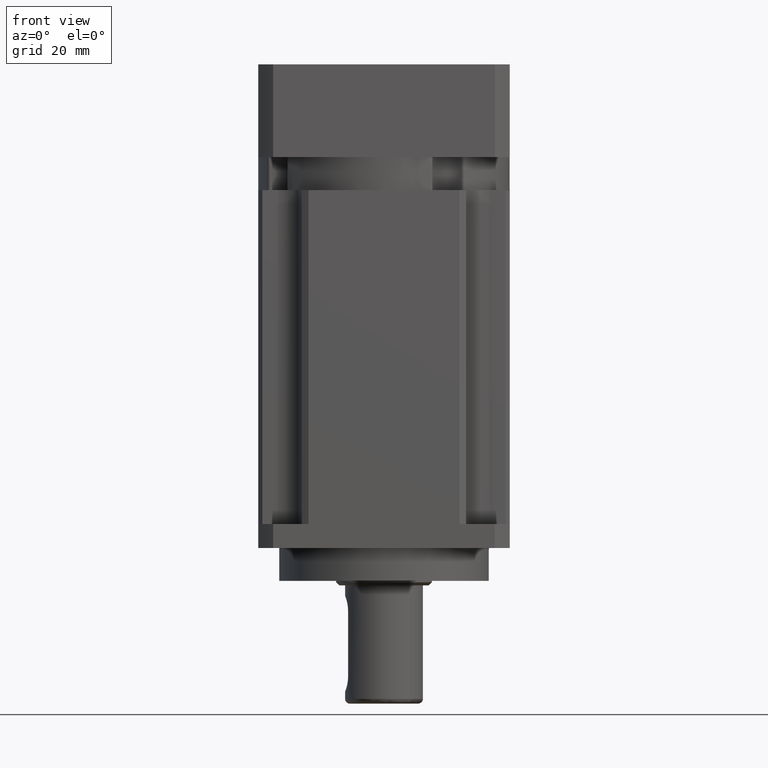
[diagram: clean part render]
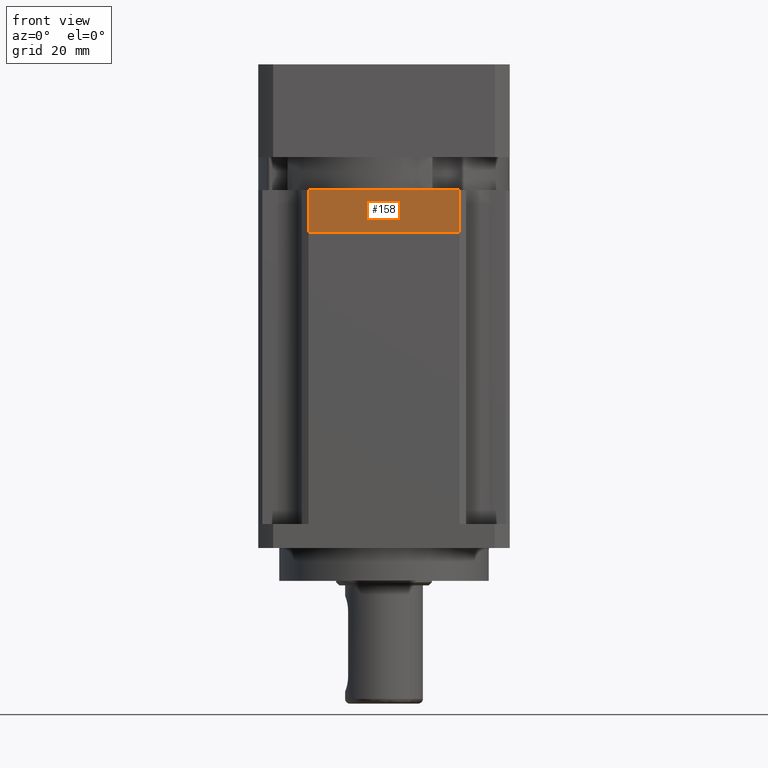
[diagram: same view with one face highlighted and labeled with its STEP entity id]
A machine part, front view. The second image highlights one B-rep face of the part: STEP entity #158.
In plain terms, the highlighted planar face has unit normal (0, -1, 0).
Its self-contained STEP definition (entity closure, byte-faithful):
#158 = ADVANCED_FACE ( 'NONE', ( #3654 ), #11178, .T. ) ;
#362 = DIRECTION ( 'NONE',  ( 0.0000000000000000000, -0.0000000000000000000, -1.000000000000000000 ) ) ;
#517 = CARTESIAN_POINT ( 'NONE',  ( 3653.603875950607300, 1395.338132520259000, 7.000000000000000000 ) ) ;
#1306 = CARTESIAN_POINT ( 'NONE',  ( 3666.223305205285700, 1395.338132565405900, 7.000000000000000000 ) ) ;
#1634 = AXIS2_PLACEMENT_3D ( 'NONE', #1306, #7619, #362 ) ;
#1671 = LINE ( 'NONE', #6410, #5624 ) ;
#1874 = VERTEX_POINT ( 'NONE', #7097 ) ;
#2057 = EDGE_LOOP ( 'NONE', ( #11184, #9198, #7789, #6221, #11578 ) ) ;
#2483 = CARTESIAN_POINT ( 'NONE',  ( 3640.984445852478100, 1395.338132565405900, 7.000000000000000000 ) ) ;
#3654 = FACE_OUTER_BOUND ( 'NONE', #2057, .T. ) ;
#3820 = EDGE_CURVE ( 'NONE', #5255, #7777, #11193, .T. ) ;
#3906 = CARTESIAN_POINT ( 'NONE',  ( 3640.984445852478100, 1395.338132565405900, 7.000000000000000000 ) ) ;
#4369 = CARTESIAN_POINT ( 'NONE',  ( 3653.603875950607300, 1395.338132565405900, 0.0000000000000000000 ) ) ;
#4434 = VECTOR ( 'NONE', #8226, 1000.000000000000000 ) ;
#4487 = VECTOR ( 'NONE', #8546, 1000.000000000000000 ) ;
#5066 = LINE ( 'NONE', #5790, #4487 ) ;
#5230 = VECTOR ( 'NONE', #7071, 1000.000000000000000 ) ;
#5255 = VERTEX_POINT ( 'NONE', #517 ) ;
#5404 = VERTEX_POINT ( 'NONE', #6008 ) ;
#5508 = DIRECTION ( 'NONE',  ( -0.0000000000000000000, 0.0000000000000000000, 1.000000000000000000 ) ) ;
#5624 = VECTOR ( 'NONE', #5508, 1000.000000000000000 ) ;
#5790 = CARTESIAN_POINT ( 'NONE',  ( 3666.223305205285700, 1395.338132565405900, 7.000000000000000000 ) ) ;
#6008 = CARTESIAN_POINT ( 'NONE',  ( 3666.223305205285700, 1395.338132565405900, 0.0000000000000000000 ) ) ;
#6221 = ORIENTED_EDGE ( 'NONE', *, *, #8874, .T. ) ;
#6410 = CARTESIAN_POINT ( 'NONE',  ( 3666.223305205285700, 1395.338132565405900, 7.000000000000000000 ) ) ;
#7015 = EDGE_CURVE ( 'NONE', #7777, #8003, #9605, .T. ) ;
#7071 = DIRECTION ( 'NONE',  ( 1.000000000000000000, 0.0000000000000000000, -0.0000000000000000000 ) ) ;
#7097 = CARTESIAN_POINT ( 'NONE',  ( 3666.223305205285700, 1395.338132565405900, 7.000000000000000000 ) ) ;
#7482 = LINE ( 'NONE', #4369, #5230 ) ;
#7619 = DIRECTION ( 'NONE',  ( 0.0000000000000000000, -1.000000000000000000, 0.0000000000000000000 ) ) ;
#7777 = VERTEX_POINT ( 'NONE', #3906 ) ;
#7789 = ORIENTED_EDGE ( 'NONE', *, *, #10682, .T. ) ;
#8003 = VERTEX_POINT ( 'NONE', #10630 ) ;
#8226 = DIRECTION ( 'NONE',  ( -1.000000000000000000, -0.0000000000000000000, -0.0000000000000000000 ) ) ;
#8416 = EDGE_CURVE ( 'NONE', #1874, #5255, #5066, .T. ) ;
#8546 = DIRECTION ( 'NONE',  ( -1.000000000000000000, -0.0000000000000000000, -0.0000000000000000000 ) ) ;
#8623 = VECTOR ( 'NONE', #8772, 1000.000000000000000 ) ;
#8772 = DIRECTION ( 'NONE',  ( 0.0000000000000000000, -0.0000000000000000000, -1.000000000000000000 ) ) ;
#8874 = EDGE_CURVE ( 'NONE', #5404, #1874, #1671, .T. ) ;
#9198 = ORIENTED_EDGE ( 'NONE', *, *, #7015, .T. ) ;
#9276 = CARTESIAN_POINT ( 'NONE',  ( 3666.223305205285700, 1395.338132565405900, 7.000000000000000000 ) ) ;
#9605 = LINE ( 'NONE', #2483, #8623 ) ;
#10630 = CARTESIAN_POINT ( 'NONE',  ( 3640.984445852478100, 1395.338132565405900, 0.0000000000000000000 ) ) ;
#10682 = EDGE_CURVE ( 'NONE', #8003, #5404, #7482, .T. ) ;
#11178 = PLANE ( 'NONE',  #1634 ) ;
#11184 = ORIENTED_EDGE ( 'NONE', *, *, #3820, .T. ) ;
#11193 = LINE ( 'NONE', #9276, #4434 ) ;
#11578 = ORIENTED_EDGE ( 'NONE', *, *, #8416, .T. ) ;